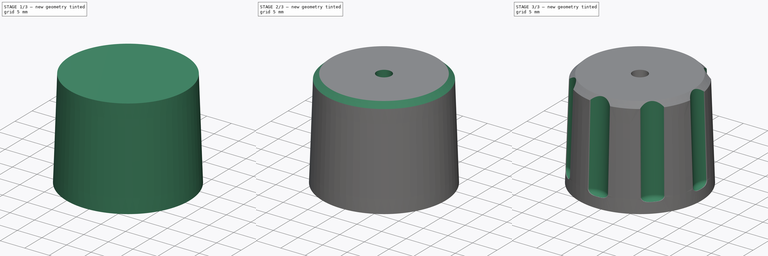
[diagram: build sequence overview — one tinted view per stage of 3, left to right]
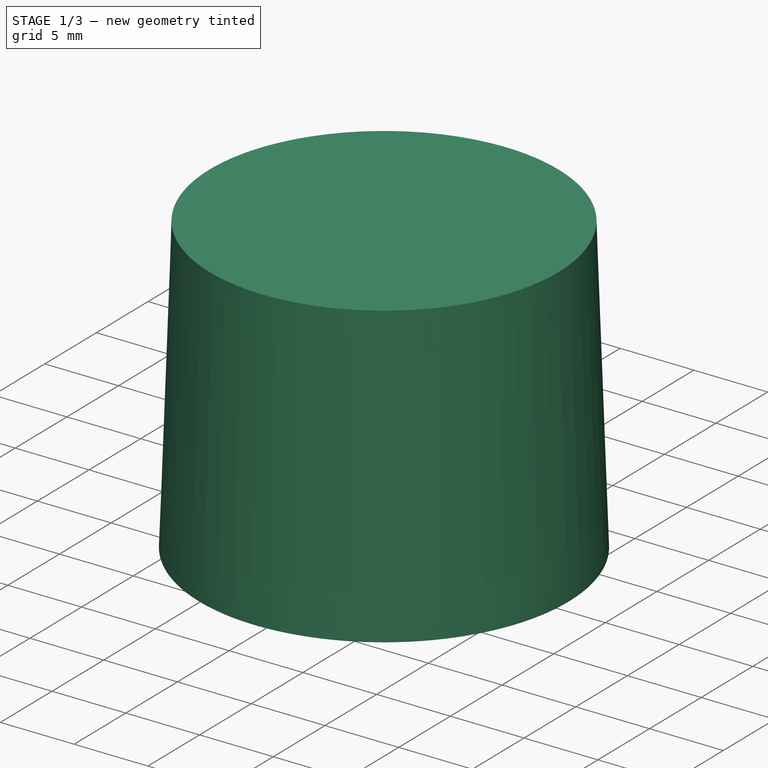
[diagram: stage 1 of 3 — iso view after this stage's code; geometry added in this stage tinted green]
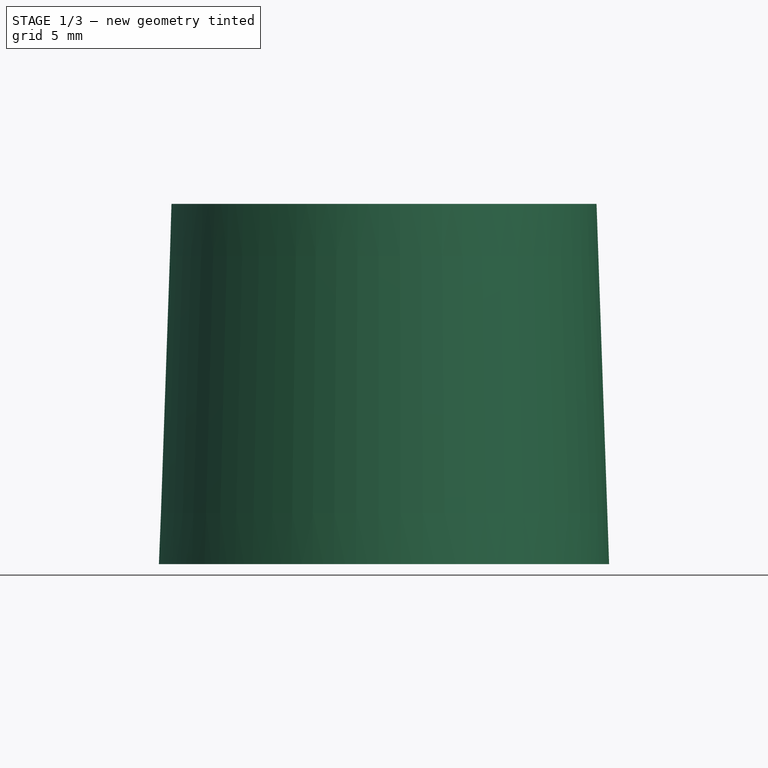
[diagram: stage 1 of 3 — front view after this stage's code; geometry added in this stage tinted green]
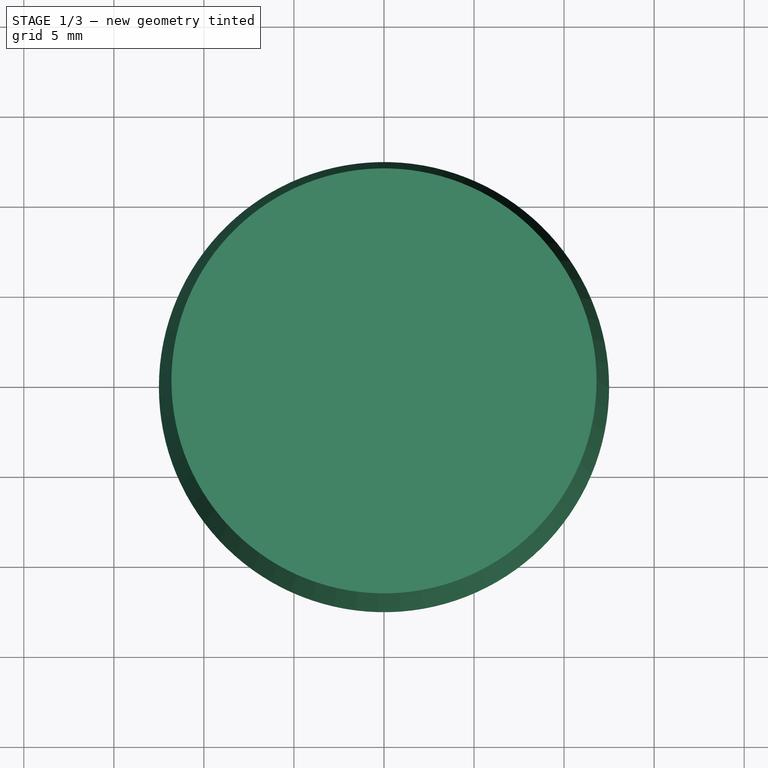
[diagram: stage 1 of 3 — top view after this stage's code; geometry added in this stage tinted green]
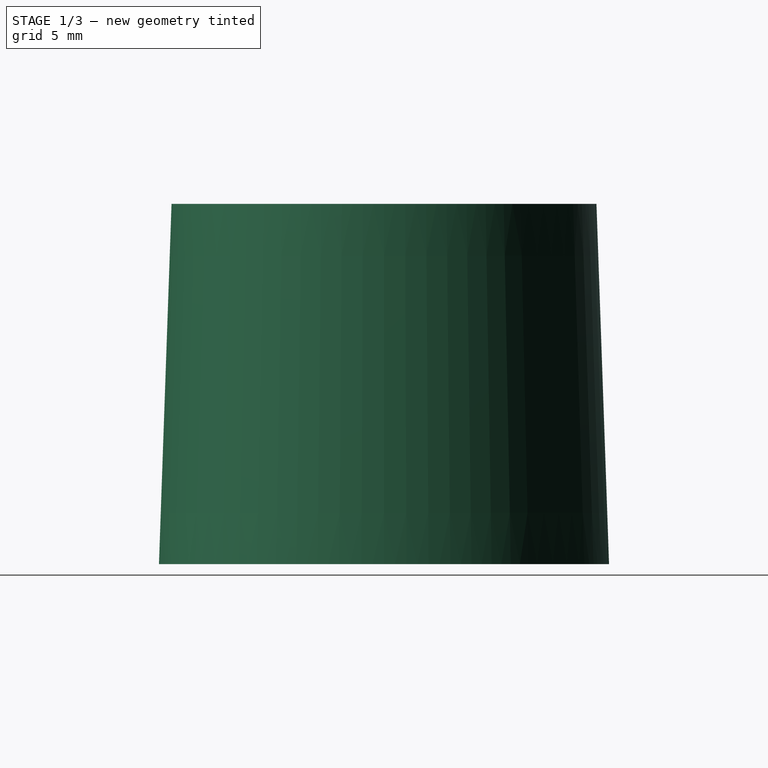
[diagram: stage 1 of 3 — right view after this stage's code; geometry added in this stage tinted green]
FCSTD DOCUMENT  (FreeCAD 0.19R)
Label: knurledNut-mac-4
License: All rights reserved
LicenseURL: http://en.wikipedia.org/wiki/All_rights_reserved
objects: Sketcher::SketchObject×4, PartDesign::Pocket×2, Spreadsheet::Sheet×1, PartDesign::Pad×1, PartDesign::Draft×1, PartDesign::Chamfer×1, PartDesign::Groove×1, PartDesign::PolarPattern×1, PartDesign::Body×1
note: 18 computed .brp shape members not serialized (recipe doc carries the construction recipe); baked Part::Feature solids carry a one-line shape summary decoded from their .brp

FEATURE [Sketcher::SketchObject] Sketch
  MapMode = 5
  Support = -> [XY_Plane]
  expr: Constraints[1] = Spreadsheet.outerdia
  sketch-geometry (1):
    g0: Circle CenterX=0 CenterY=0 CenterZ=0 NormalX=0 NormalY=0 NormalZ=1 AngleXU=0 Radius=12.5
  constraints (2):
    c: Coincident(g0,g-1)
    c: Diameter(g0) = 25
FEATURE [Spreadsheet::Sheet] Spreadsheet
  cells = A1=Outer Diameter; B1(outerdia)=25; C1=Sets the OD of the knob; A2=Overall height; B2(ovrhei)=20; C2=Sets the height of the knob; A3=Draft Angle; B3(drftsang)=2; C3=Sets the drasft angle of the knob; A4=Bottom of nut; B4(nutbottom)=5; C4=Sets distance of nut from bottom of knob; A5=Nut thickness; B5(nutthk)=3; C5=Sets the thickness of the nut; A6=Screw diameter; B6(scrdia)=3; C6=Sets the size of hole through knob; A7=Hex size; B7(hexsiz)=6; C7=Sets the distance across the flats of nut; A9=Diameter Knurls outside; B9(knurlod)==outerdia + knurldep; C9=Calculated value (not changed by user); A10=Diameter Knurls inside; B10(knurlid)==outerdia - knurldep; C10=Calculated value (not changed by user); A11=Depth of knurl; B11(knurldep)=0.5; A12=Angle knurl; B12(knurlang)=45; A13=Knurl count; B13(knurlcnt)==knurllim == 1 ? knurlcntmin : knurlcntcalc; C13=Calculated value (not changed by user); A14=Circumferance; B14(outercircum)==pi * outerdia; C14=Calculated value (not changed by user); A15=Chord Length; B15(chordlen)==2 * tan(knurlang / 2) * knurldep / 2; C15=Calculated value (not changed by user); A16=Knurl count minimum; B16(knurlcntmin)=8; C16=Sets the minimum number of knurls; A17=Knurl count calc; B17(knurlcntcalc)==floor(round(outercircum / chordlen)) - 200; C17=Calculated value (not changed by user); A18=Limit knurl count(1=yes, 0 = no); B18(knurllim)=1; C18=Indicates if calculated knurls used or not; A19=Knurl count adj; B19(knurlcntadj)==knurlcntcalc <= knurlcntmin ? kurlcntmin : knurlcntcalc; C19=Calculated value (not changed by user)
FEATURE [PartDesign::Pad] Pad
  Direction = (1,1,1)
  Length = 20
  Length2 = 100
  Profile = -> Sketch
  Type = 0
  expr: Length = Spreadsheet.ovrhei
FEATURE [Sketcher::SketchObject] Sketch001
  AttachmentOffset = pos=(0,0,5) rot=(0,0,1;0rad)
  MapMode = 5
  Placement = pos=(0,0,5) rot=(0,0,1;0rad)
  Support = -> [XY_Plane]
  expr: Constraints[19] = Spreadsheet.hexsiz
  expr: .AttachmentOffset.Base.z = Spreadsheet.nutbottom
  sketch-geometry (7):
    g0: LineSegment StartX=3.4641 StartY=1.03846e-11 StartZ=0 EndX=1.73205 EndY=3 EndZ=0
    g1: LineSegment StartX=1.73205 StartY=3 StartZ=0 EndX=-1.73205 EndY=3 EndZ=0
    g2: LineSegment StartX=-1.73205 StartY=3 StartZ=0 EndX=-3.4641 EndY=5.3189e-12 EndZ=0
    g3: LineSegment StartX=-3.4641 StartY=5.3189e-12 StartZ=0 EndX=-1.73205 EndY=-3 EndZ=0
    g4: LineSegment StartX=-1.73205 StartY=-3 StartZ=0 EndX=1.73205 EndY=-3 EndZ=0
    g5: LineSegment StartX=1.73205 StartY=-3 StartZ=0 EndX=3.4641 EndY=1.03846e-11 EndZ=0
    g6: Circle CenterX=0 CenterY=0 CenterZ=0 NormalX=0 NormalY=0 NormalZ=1 AngleXU=0 Radius=3.4641
  constraints (16):
    c: Coincident(g0,g1)
    c: Coincident(g1,g2)
    c: Coincident(g2,g3)
    c: Coincident(g3,g4)
    c: Coincident(g4,g5)
    c: Coincident(g5,g0)
    c: Equal(g0, g1-g5) x5
    c: PointOnObject(g0,g6)
    c: PointOnObject(g1,g6)
    c: PointOnObject(g2,g6)
    c: PointOnObject(g3,g6)
    c: PointOnObject(g4,g6)
    c: PointOnObject(g5,g6)
    c: Coincident(g6,g-1)
    c: Horizontal(g1)
    c: DistanceY(g4,g0) = 6
FEATURE [Sketcher::SketchObject] Sketch002
  MapMode = 5
  Support = -> [XY_Plane]
  expr: Constraints[1] = Spreadsheet.scrdia
  sketch-geometry (1):
    g0: Circle CenterX=0 CenterY=0 CenterZ=0 NormalX=0 NormalY=0 NormalZ=1 AngleXU=0 Radius=1.5
  constraints (2):
    c: Coincident(g0,g-1)
    c: Diameter(g0) = 3
FEATURE [Sketcher::SketchObject] Sketch003
  AttachmentOffset = pos=(12.5,0,0) rot=(0,0,1;0.034907rad)
  MapMode = 5
  Placement = pos=(2.8e-15,12.5,-2.8e-15) rot=(0.583952,0.563916,0.583952;2.11466rad)
  Support = -> [YZ_Plane]
  expr: .AttachmentOffset.Rotation.Angle = Spreadsheet.drftsang
  expr: .AttachmentOffset.Base.x = Spreadsheet.outerdia / 2
  sketch-geometry (6):
    g0: LineSegment StartX=-0.946167 StartY=20.8555 StartZ=0 EndX=2.21843 EndY=20.8555 EndZ=0
    g1: LineSegment StartX=2.21843 StartY=20.8555 StartZ=0 EndX=2.21843 EndY=2.10405 EndZ=0
    g2: LineSegment StartX=2.21843 StartY=2.10405 StartZ=0 EndX=0 EndY=2.10405 EndZ=0
    g3: LineSegment StartX=-0.946167 StartY=3.05022 StartZ=0 EndX=-0.946167 EndY=20.8555 EndZ=0
    g4: ArcOfCircle CenterX=1e-16 CenterY=3.05022 CenterZ=0 NormalX=0 NormalY=0 NormalZ=1 AngleXU=0 Radius=0.946167 StartAngle=3.14159 EndAngle=4.71239
    g5: LineSegment StartX=0 StartY=0 StartZ=0 EndX=0 EndY=2.10405 EndZ=0
  constraints (12):
    c: Coincident(g0,g1)
    c: Coincident(g1,g2)
    c: Coincident(g3,g0)
    c: Horizontal(g0)
    c: Horizontal(g2)
    c: Vertical(g1)
    c: Vertical(g3)
    c: Tangent(g2,g4) = 1.5708
    c: Tangent(g3,g4) = 1.5708
    c: Coincident(g5,g-1)
    c: Coincident(g5,g2)
    c: Vertical(g5)
FEATURE [PartDesign::Draft] Draft
  Angle = 2
  Base = -> Pad [Face1]
  BaseFeature = -> Pad
  SupportTransform = false
  expr: Angle = Spreadsheet.drftsang
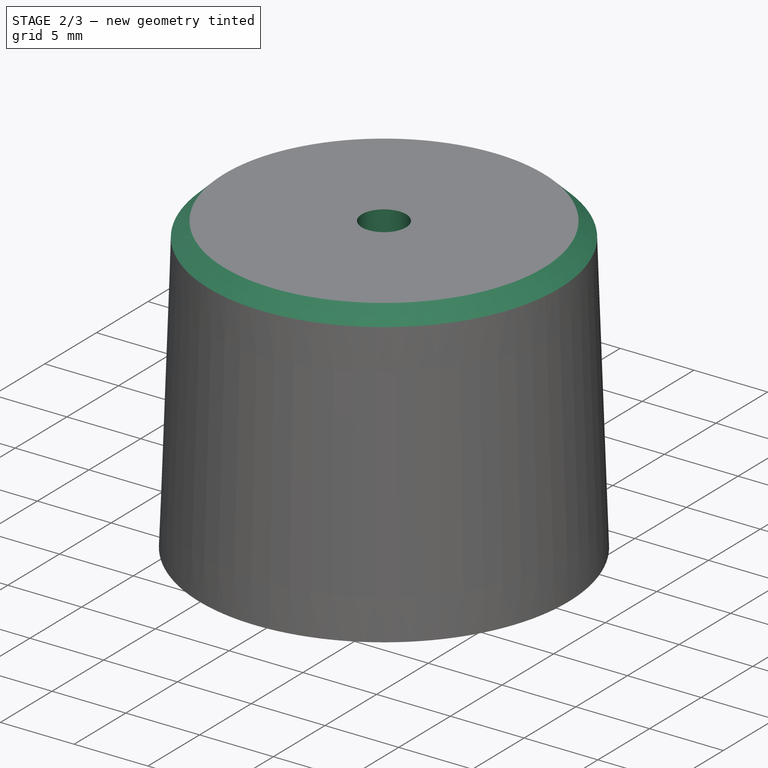
[diagram: stage 2 of 3 — iso view after this stage's code; geometry added in this stage tinted green]
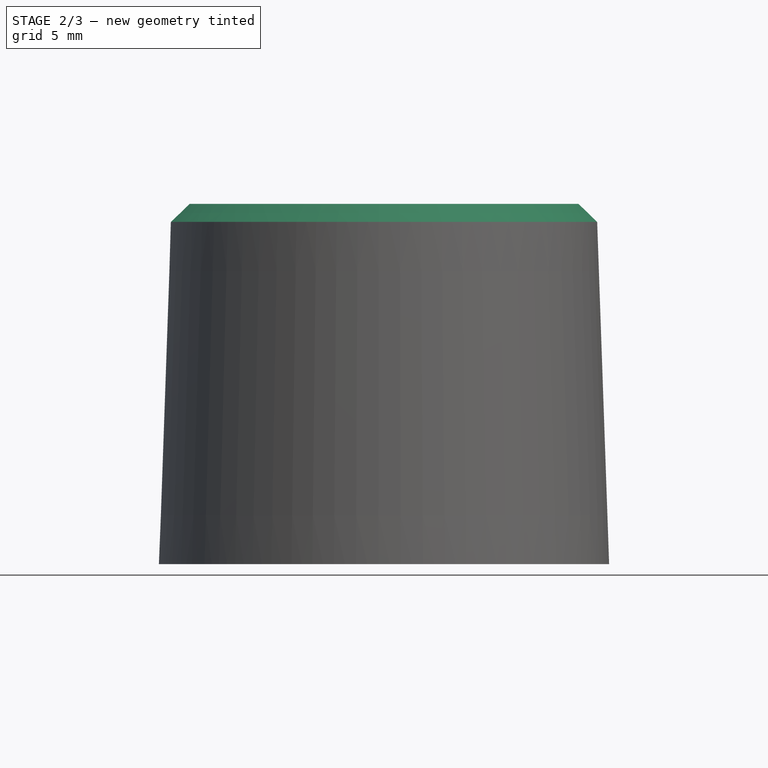
[diagram: stage 2 of 3 — front view after this stage's code; geometry added in this stage tinted green]
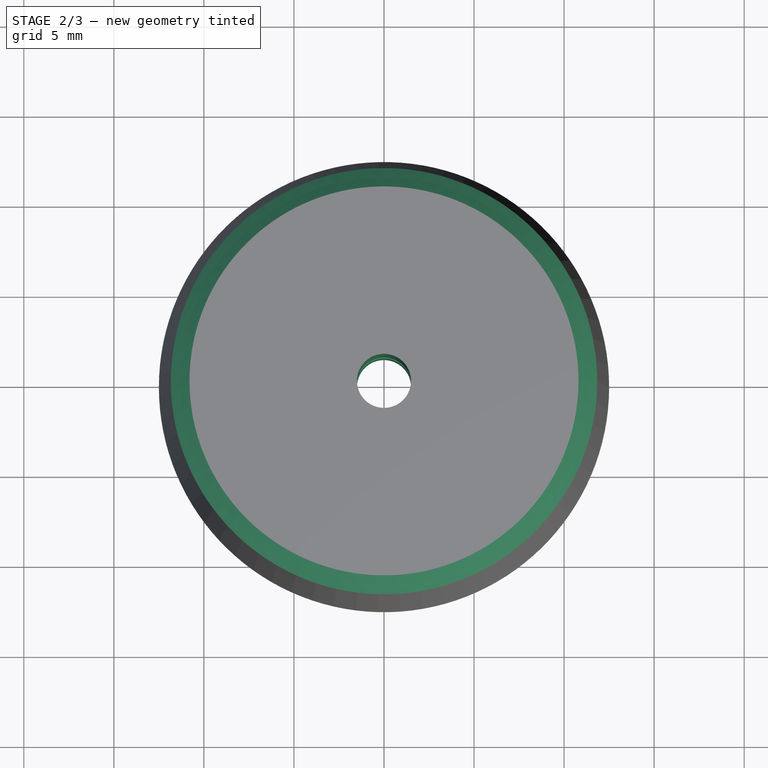
[diagram: stage 2 of 3 — top view after this stage's code; geometry added in this stage tinted green]
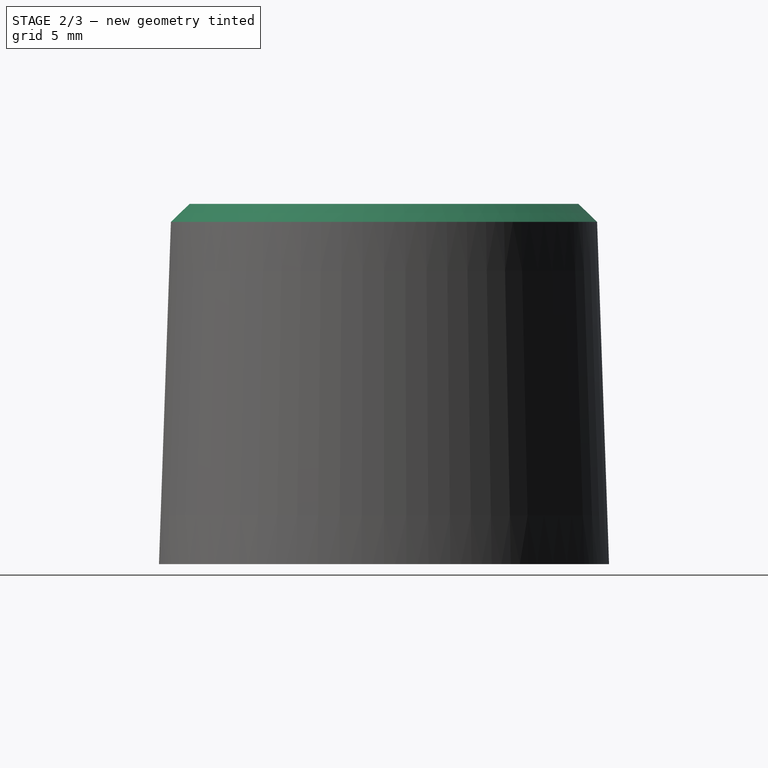
[diagram: stage 2 of 3 — right view after this stage's code; geometry added in this stage tinted green]
FEATURE [PartDesign::Chamfer] Chamfer
  Angle = 45
  Base = -> Draft [Edge3]
  BaseFeature = -> Draft
  ChamferType = 0
  FlipDirection = false
  Size = 1
  Size2 = 1
  SupportTransform = false
FEATURE [PartDesign::Pocket] Pocket001
  BaseFeature = -> Chamfer
  Length = 5
  Length2 = 100
  Profile = -> Sketch002
  Reversed = true
  Type = 1
FEATURE [PartDesign::Pocket] Pocket
  BaseFeature = -> Pocket001
  Length = 3
  Length2 = 100
  Profile = -> Sketch001
  Reversed = true
  Type = 0
  expr: Length = Spreadsheet.nutthk
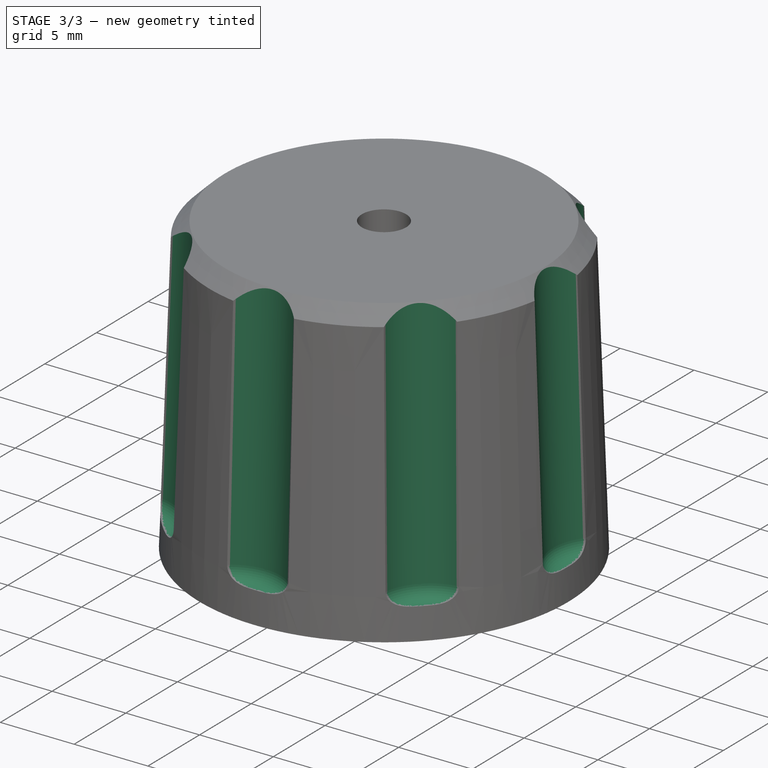
[diagram: stage 3 of 3 — iso view after this stage's code; geometry added in this stage tinted green]
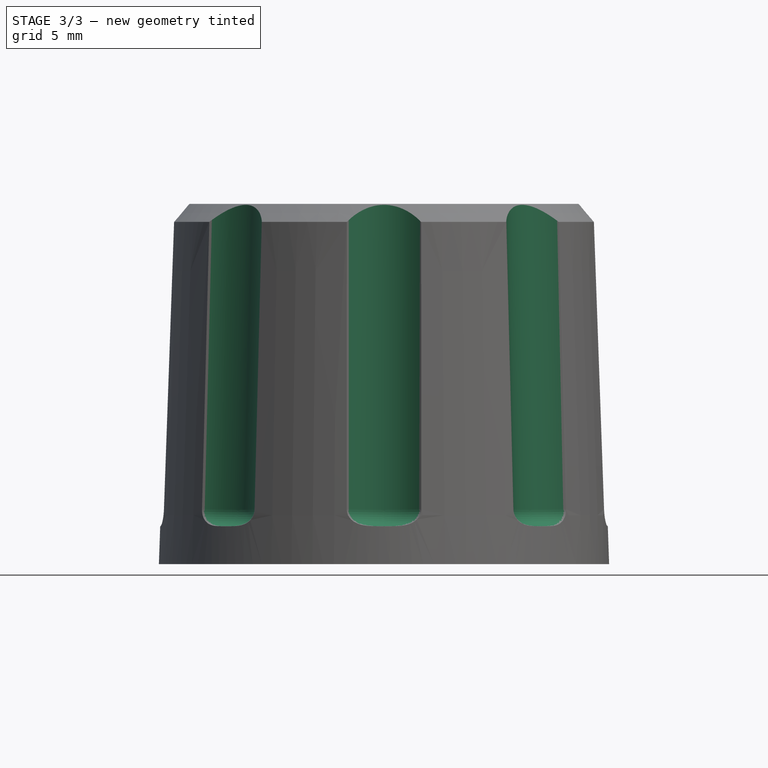
[diagram: stage 3 of 3 — front view after this stage's code; geometry added in this stage tinted green]
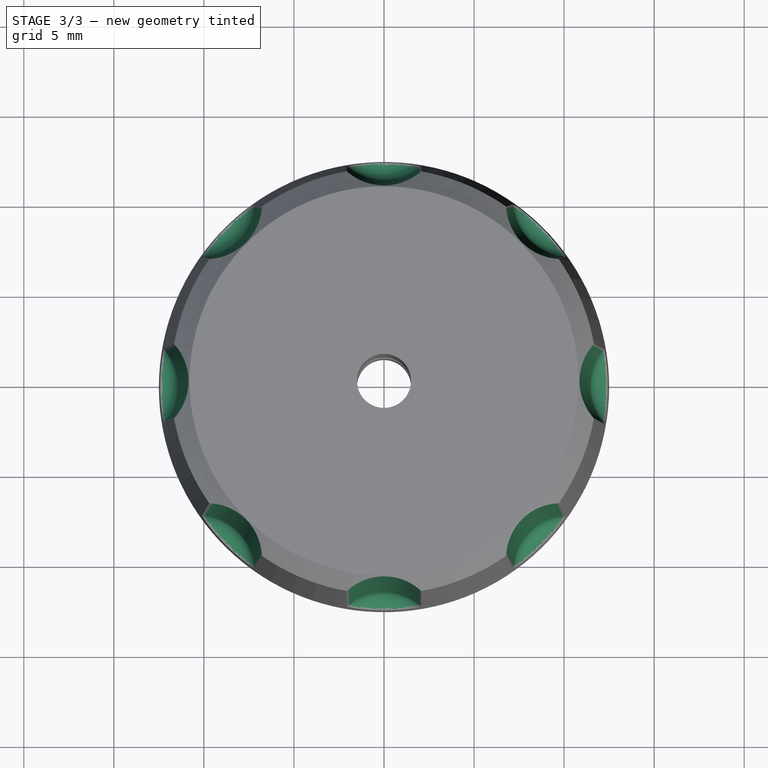
[diagram: stage 3 of 3 — top view after this stage's code; geometry added in this stage tinted green]
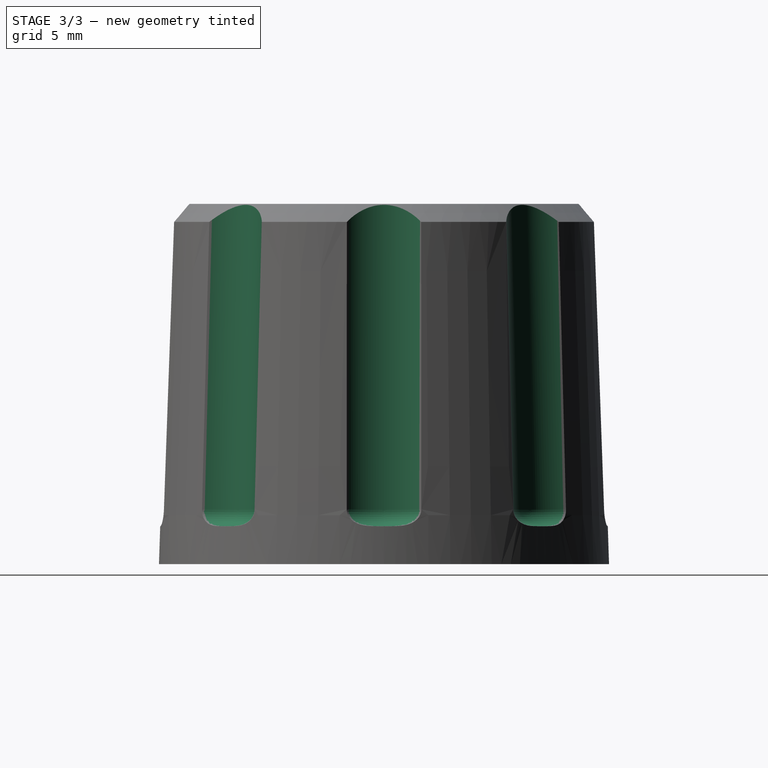
[diagram: stage 3 of 3 — right view after this stage's code; geometry added in this stage tinted green]
FEATURE [PartDesign::Groove] Groove
  Angle = 360
  Axis = (2e-16,0.0348995,-0.999391)
  Base = (-1.6e-15,13.9892,20.9203)
  BaseFeature = -> Pocket
  Profile = -> Sketch003
  ReferenceAxis = -> Sketch003 [Edge2]
FEATURE [PartDesign::PolarPattern] PolarPattern
  Angle = 360
  Axis = -> Z_Axis
  BaseFeature = -> Groove
  Occurrences = 8
  Originals = -> [Groove]
  expr: Occurrences = Spreadsheet.knurlcnt
FEATURE [PartDesign::Body] Body
  Group = -> [Sketch,Pad,Sketch001,Sketch002,Sketch003,Draft,Chamfer,Pocket001,Pocket,Groove,PolarPattern]
  Origin = -> Origin
  Tip = -> PolarPattern
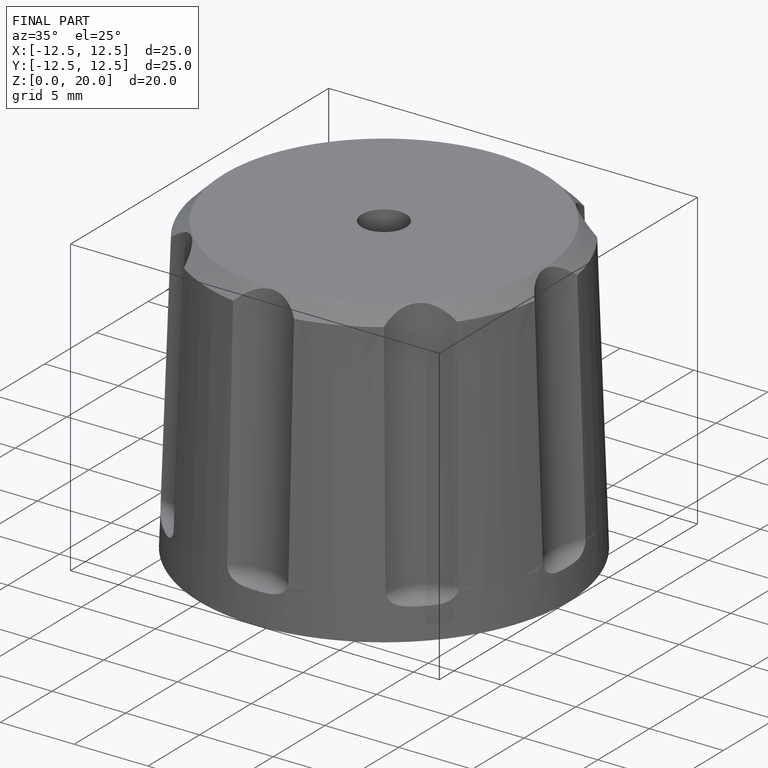
[diagram: finished part — iso view with bounding-box wireframe]
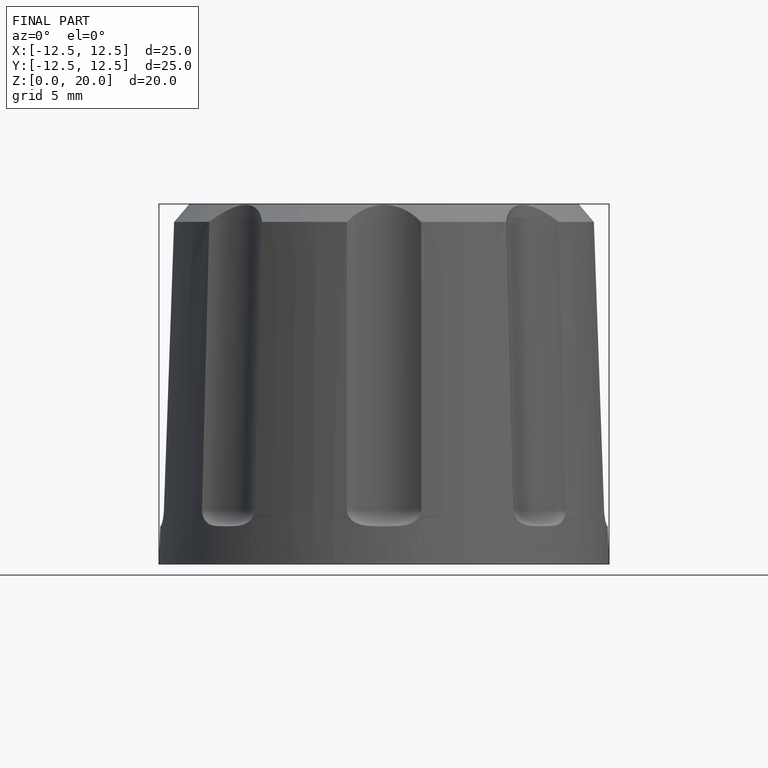
[diagram: finished part — front view with bounding-box wireframe]
